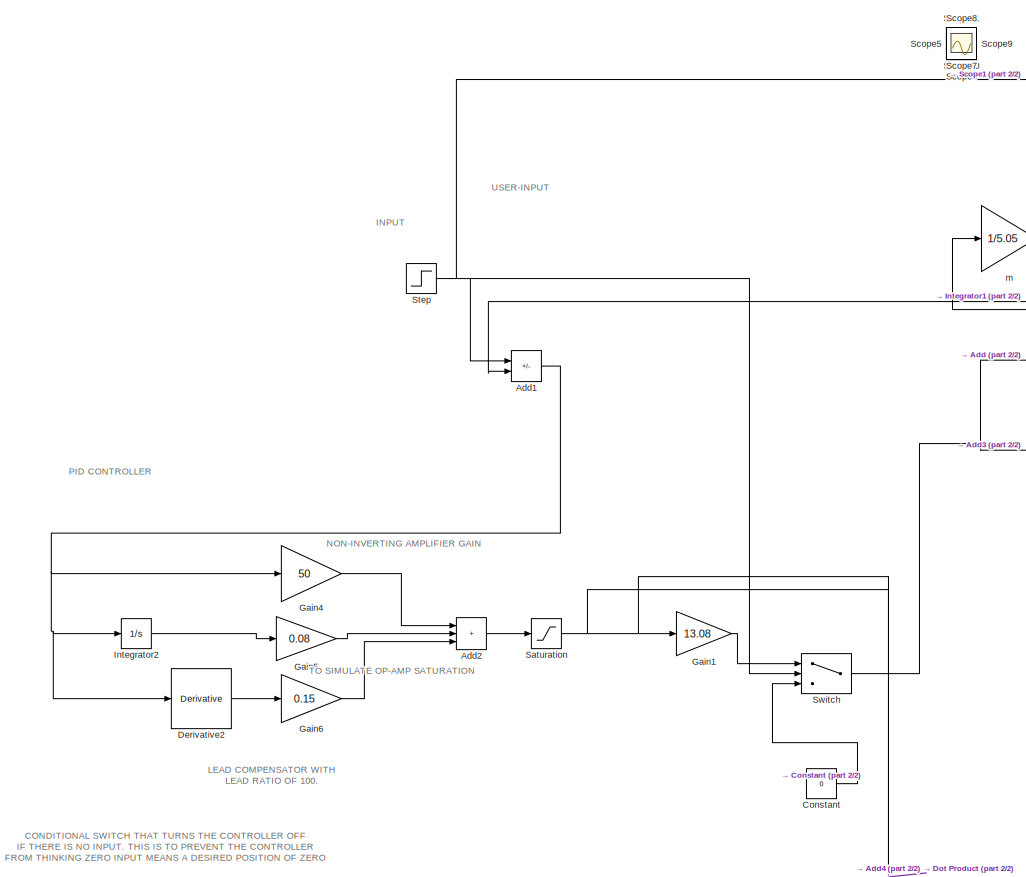
[diagram: root canvas - part 1/2, left side, full height]
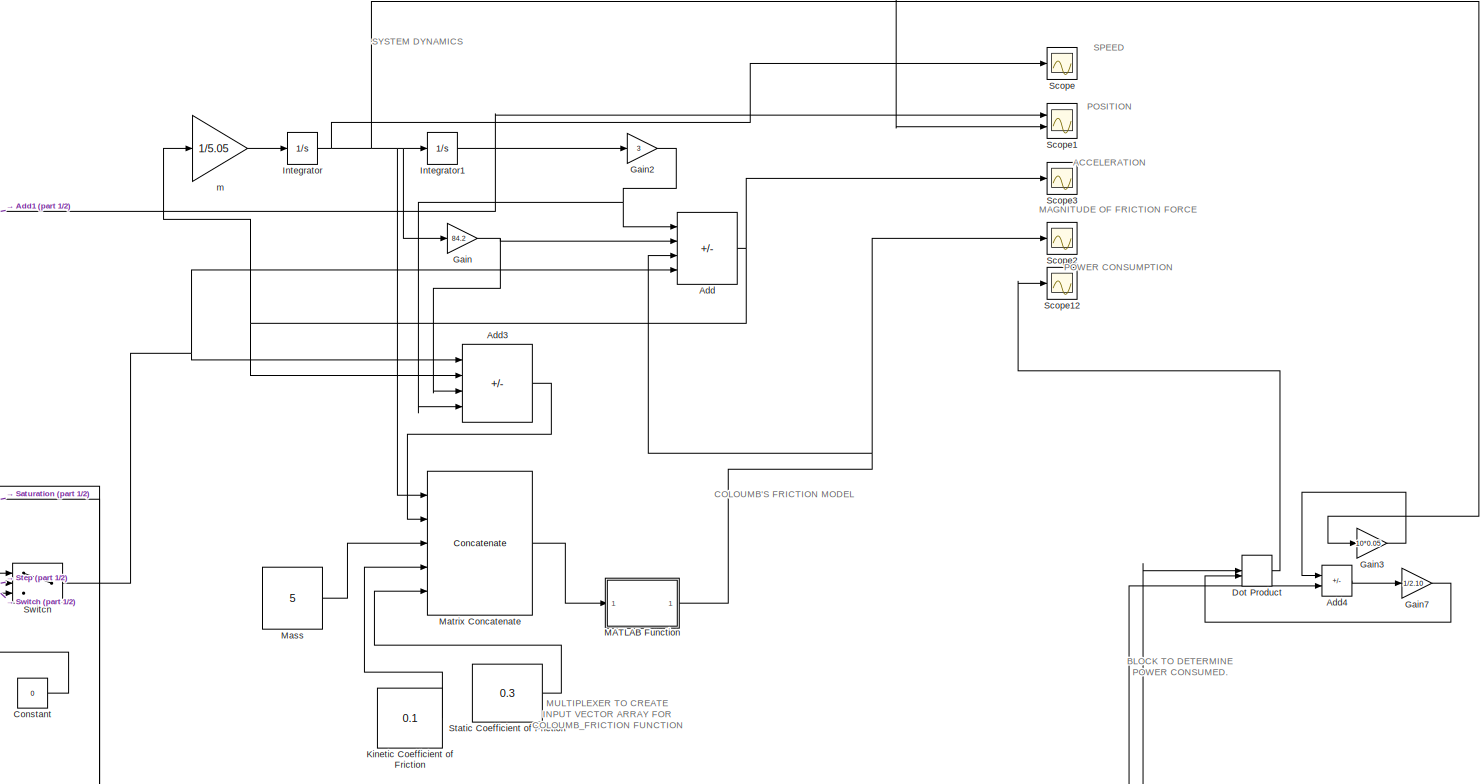
[diagram: root canvas - part 2/2, right side, full height]
MODEL slx_0d11b2eabd2a
KIND model
CONFIG AbsTol = auto
CONFIG EnableMultiTasking = off
CONFIG FixedStep = auto
CONFIG MaxStep = auto
CONFIG MinStep = auto
CONFIG RelTol = 1e-3
CONFIG SampleTimeConstraint = Unconstrained
CONFIG Solver = VariableStepAuto
CONFIG SolverName = VariableStepAuto
CONFIG StartTime = 0.0
CONFIG StopTime = 15
BLOCK [Sum] Add
  IconShape = rectangular
  Inputs = --++
  Ports = [4, 1]
BLOCK [Sum] Add1
  IconShape = rectangular
  Inputs = +-
  Ports = [2, 1]
BLOCK [Sum] Add2
  IconShape = rectangular
  Inputs = 3
  Ports = [3, 1]
BLOCK [Sum] Add3
  IconShape = rectangular
  Inputs = -+++
  Ports = [4, 1]
BLOCK [Sum] Add4
  IconShape = rectangular
  Inputs = -+
  Ports = [2, 1]
BLOCK [Constant] Constant
  Value = 0
BLOCK [Derivative] Derivative2
  CoefficientInTFapproximation = 0.01
BLOCK [DotProduct] Dot Product
  OutDataTypeStr = Inherit: Inherit via internal rule
BLOCK [Gain] Gain
  Gain = 84.2
BLOCK [Gain] Gain1
  Gain = 13.08
BLOCK [Gain] Gain2
  Gain = 3
BLOCK [Gain] Gain3
  Gain = 10*0.05
BLOCK [Gain] Gain4
  Gain = 50
BLOCK [Gain] Gain5
  Gain = 0.08
BLOCK [Gain] Gain6
  Gain = 0.15
BLOCK [Gain] Gain7
  Gain = 1/2.10
BLOCK [Integrator] Integrator
  Ports = [1, 1]
BLOCK [Integrator] Integrator1
  InitialCondition = 0.5
  Ports = [1, 1]
BLOCK [Integrator] Integrator2
  Ports = [1, 1]
BLOCK [Constant] Kinetic Coefficient of Friction
  Value = 0.1
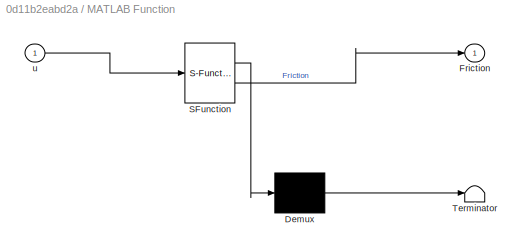
BLOCK [SubSystem] MATLAB Function
  ErrorFcn = Stateflow.Translate.translate
  PermitHierarchicalResolution = ExplicitOnly
  Ports = [1, 1]
  RequestExecContextInheritance = off
  SFBlockType = MATLAB Function
  TreatAsAtomicUnit = on
BLOCK [Demux] MATLAB Function/ Demux 
  Outputs = 1
  Ports = [1, 1]
BLOCK [S-Function] MATLAB Function/ SFunction 
  EnableBusSupport = on
  FunctionName = sf_sfun
  PortCounts = [1 2]
  Ports = [1, 2]
  SFcnIsStateOwnerBlock = off
  SFunctionDeploymentMode = off
  Tag = Stateflow S-Function 2
BLOCK [Terminator] MATLAB Function/ Terminator 
BLOCK [Outport] MATLAB Function/Friction
BLOCK [Inport] MATLAB Function/u
BLOCK [Constant] Mass
  Value = 5
BLOCK [Concatenate] Matrix Concatenate
  ConcatenateDimension = 2
  NumInputs = 5
  Ports = [5, 1]
BLOCK [Saturate] Saturation
  LowerLimit = -5
  UpperLimit = 5
BLOCK [Scope] Scope
  Floating = off
  NumInputPorts = 1
  Ports = [1]
  ScopeSpecificationString = Simulink.scopes.TimeScopeBlockCfg('CurrentConfiguration', extmgr.ConfigurationSet(extmgr.Configuration('Core','General UI',true),extmgr.Configuration('Core','Source UI',true),extmgr.Configuration('Sources','WiredSimulink',true),extmgr.Configuration('Visuals','Time Domain',true,'SerializedDisplays',{struct('MinYLimReal','-0.04','MaxYLimReal','0.1','YLabelReal','Speed','MinYLimMag','0.00000','MaxYLi...<+1795ch>
BLOCK [Scope] Scope1
  Floating = off
  NumInputPorts = 2
  Ports = [2]
  ScopeSpecificationString = Simulink.scopes.TimeScopeBlockCfg('CurrentConfiguration', extmgr.ConfigurationSet(extmgr.Configuration('Core','General UI',true),extmgr.Configuration('Core','Source UI',true),extmgr.Configuration('Sources','WiredSimulink',true,'DataLoggingVariableName','ScopeData2'),extmgr.Configuration('Visuals','Time Domain',true,'SerializedDisplays',{struct('MinYLimReal','-0.05529','MaxYLimReal','0.62648','YLab...<+2017ch>
BLOCK [Scope] Scope10
  Floating = off
  IOType = viewer
  NumInputPorts = 1
  Ports = []
  ScopeSpecificationString = Simulink.scopes.TimeScopeBlockCfg('CurrentConfiguration', extmgr.ConfigurationSet(extmgr.Configuration('Core','General UI',true),extmgr.Configuration('Core','Source UI',true),extmgr.Configuration('Sources','WiredSimulink',true,'DataLoggingVariableName','ScopeData1'),extmgr.Configuration('Visuals','Time Domain',true,'SerializedDisplays',{struct('MinYLimReal','-220.97096','MaxYLimReal','1738.73861',...<+1414ch>
BLOCK [Scope] Scope11
  Floating = off
  IOType = viewer
  NumInputPorts = 1
  Ports = []
  ScopeSpecificationString = Simulink.scopes.TimeScopeBlockCfg('CurrentConfiguration', extmgr.ConfigurationSet(extmgr.Configuration('Core','General UI',true),extmgr.Configuration('Core','Source UI',true),extmgr.Configuration('Sources','WiredSimulink',true,'DataLoggingVariableName','ScopeData2'),extmgr.Configuration('Visuals','Time Domain',true,'SerializedDisplays',{struct('MinYLimReal','-6.25','MaxYLimReal','6.25','YLabelReal...<+1779ch>
BLOCK [Scope] Scope12
  Floating = off
  NumInputPorts = 1
  Ports = [1]
  ScopeSpecificationString = Simulink.scopes.TimeScopeBlockCfg('CurrentConfiguration', extmgr.ConfigurationSet(extmgr.Configuration('Core','General UI',true),extmgr.Configuration('Core','Source UI',true),extmgr.Configuration('Sources','WiredSimulink',true,'DataLoggingVariableName','ScopeData3'),extmgr.Configuration('Visuals','Time Domain',true,'SerializedDisplays',{struct('MinYLimReal','-1.48824','MaxYLimReal','13.39419','YLa...<+1780ch>
BLOCK [Scope] Scope2
  Floating = off
  NumInputPorts = 1
  Ports = [1]
  ScopeSpecificationString = Simulink.scopes.TimeScopeBlockCfg('CurrentConfiguration', extmgr.ConfigurationSet(extmgr.Configuration('Core','General UI',true),extmgr.Configuration('Core','Source UI',true),extmgr.Configuration('Sources','WiredSimulink',true,'DataLoggingVariableName','ScopeData2'),extmgr.Configuration('Visuals','Time Domain',true,'SerializedDisplays',{struct('MinYLimReal','-8.11261','MaxYLimReal','16.70296','YLa...<+1846ch>
BLOCK [Scope] Scope3
  Floating = off
  NumInputPorts = 1
  Ports = [1]
  ScopeSpecificationString = Simulink.scopes.TimeScopeBlockCfg('CurrentConfiguration', extmgr.ConfigurationSet(extmgr.Configuration('Core','General UI',true),extmgr.Configuration('Core','Source UI',true),extmgr.Configuration('Sources','WiredSimulink',true,'DataLoggingVariableName','ScopeData3'),extmgr.Configuration('Visuals','Time Domain',true,'SerializedDisplays',{struct('MinYLimReal','-0.98365','MaxYLimReal','5.50259','YLab...<+1797ch>
BLOCK [Scope] Scope4
  Floating = off
  IOType = viewer
  NumInputPorts = 1
  Ports = []
  ScopeSpecificationString = Simulink.scopes.TimeScopeBlockCfg('CurrentConfiguration', extmgr.ConfigurationSet(extmgr.Configuration('Core','General UI',true),extmgr.Configuration('Core','Source UI',true),extmgr.Configuration('Sources','WiredSimulink',true,'DataLoggingVariableName','ScopeData1'),extmgr.Configuration('Visuals','Time Domain',true,'SerializedDisplays',{struct('MinYLimReal','-0.0375','MaxYLimReal','0.3375','YLabel...<+1353ch>
BLOCK [Scope] Scope5
  Floating = off
  IOType = viewer
  NumInputPorts = 1
  Ports = []
  ScopeSpecificationString = Simulink.scopes.TimeScopeBlockCfg('CurrentConfiguration', extmgr.ConfigurationSet(extmgr.Configuration('Core','General UI',true),extmgr.Configuration('Core','Source UI',true),extmgr.Configuration('Sources','WiredSimulink',true,'DataLoggingVariableName','ScopeData1'),extmgr.Configuration('Visuals','Time Domain',true,'SerializedDisplays',{struct('MinYLimReal','-2925.00000','MaxYLimReal','26325.00000...<+1414ch>
BLOCK [Scope] Scope6
  Floating = off
  IOType = viewer
  NumInputPorts = 1
  Ports = []
  ScopeSpecificationString = Simulink.scopes.TimeScopeBlockCfg('CurrentConfiguration', extmgr.ConfigurationSet(extmgr.Configuration('Core','General UI',true),extmgr.Configuration('Core','Source UI',true),extmgr.Configuration('Sources','WiredSimulink',true,'DataLoggingVariableName','ScopeData1'),extmgr.Configuration('Visuals','Time Domain',true,'SerializedDisplays',{struct('MinYLimReal','0.24829','MaxYLimReal','0.36906','YLabe...<+1416ch>
BLOCK [Scope] Scope7
  Floating = off
  IOType = viewer
  NumInputPorts = 1
  Ports = []
  ScopeSpecificationString = Simulink.scopes.TimeScopeBlockCfg('CurrentConfiguration', extmgr.ConfigurationSet(extmgr.Configuration('Core','General UI',true),extmgr.Configuration('Core','Source UI',true),extmgr.Configuration('Sources','WiredSimulink',true,'DataLoggingVariableName','ScopeData3'),extmgr.Configuration('Visuals','Time Domain',true,'SerializedDisplays',{struct('MinYLimReal','-6.25','MaxYLimReal','6.25','YLabelReal...<+1341ch>
BLOCK [Scope] Scope8
  Floating = off
  IOType = viewer
  NumInputPorts = 1
  Ports = []
  ScopeSpecificationString = Simulink.scopes.TimeScopeBlockCfg('CurrentConfiguration', extmgr.ConfigurationSet(extmgr.Configuration('Core','General UI',true),extmgr.Configuration('Core','Source UI',true),extmgr.Configuration('Sources','WiredSimulink',true,'DataLoggingVariableName','ScopeData4'),extmgr.Configuration('Visuals','Time Domain',true,'SerializedDisplays',{struct('MinYLimReal','-6.25','MaxYLimReal','6.25','YLabelReal...<+1741ch>
BLOCK [Scope] Scope9
  Floating = off
  IOType = viewer
  NumInputPorts = 1
  Ports = []
  ScopeSpecificationString = Simulink.scopes.TimeScopeBlockCfg('CurrentConfiguration', extmgr.ConfigurationSet(extmgr.Configuration('Core','General UI',true),extmgr.Configuration('Core','Source UI',true),extmgr.Configuration('Sources','WiredSimulink',true,'DataLoggingVariableName','ScopeData1'),extmgr.Configuration('Visuals','Time Domain',true,'SerializedDisplays',{struct('MinYLimReal','-81.75','MaxYLimReal','81.75','YLabelRe...<+1384ch>
BLOCK [Constant] Static Coefficient of Friction
  Value = 0.3
BLOCK [Step] Step
  After = 0.3
  SampleTime = 0
BLOCK [Switch] Switch
  InputSameDT = off
  SaturateOnIntegerOverflow = off
  Threshold = 0.01
BLOCK [Gain] m
  Gain = 1/5.05
ANNOTATION (root): ACCELERATION
ANNOTATION (root): BLOCK TO DETERMINE POWER CONSUMED.
ANNOTATION (root): COLOUMB'S FRICTION MODEL
ANNOTATION (root): CONDITIONAL SWITCH THAT TURNS THE CONTROLLER OFF IF THERE IS NO INPUT. THIS IS TO PREVENT THE CONTROLLER FROM THINKING ZERO INPUT MEANS A DESIRED POSITION OF ZERO
ANNOTATION (root): INPUT
ANNOTATION (root): LEAD COMPENSATOR WITH LEAD RATIO OF 100.
ANNOTATION (root): MAGNITUDE OF FRICTION FORCE
ANNOTATION (root): MULTIPLEXER TO CREATE INPUT VECTOR ARRAY FOR COLOUMB_FRICTION FUNCTION
ANNOTATION (root): NON-INVERTING AMPLIFIER GAIN
ANNOTATION (root): PID CONTROLLER
ANNOTATION (root): POSITION
ANNOTATION (root): SPEED
ANNOTATION (root): SYSTEM DYNAMICS
ANNOTATION (root): TO SIMULATE OP-AMP SATURATION
ANNOTATION (root): USER-INPUT
ANNOTATION (root): POWER CONSUMPTION
NET Add1:1 -> Derivative2:1, Gain4:1, Integrator2:1
LINE Add2:1 -> Saturation:1
LINE Add3:1 -> Matrix Concatenate:2
LINE Add4:1 -> Gain7:1
NET Add:1 -> Add3:2, Scope3:1, m:1
LINE Constant:1 -> Switch:3
LINE Derivative2:1 -> Gain6:1
LINE Dot Product:1 -> Scope12:1
LINE Gain1:1 -> Switch:1
NET Gain2:1 -> Add3:4, Add:1
LINE Gain3:1 -> Add4:1
LINE Gain4:1 -> Add2:1
LINE Gain5:1 -> Add2:2
LINE Gain6:1 -> Add2:3
LINE Gain7:1 -> Dot Product:2
NET Gain:1 -> Add3:3, Add:2
NET Integrator1:1 -> Add1:2, Gain2:1, Scope1:1
LINE Integrator2:1 -> Gain5:1
NET Integrator:1 -> Gain3:1, Gain:1, Integrator1:1, Matrix Concatenate:1, Scope:1
LINE Kinetic Coefficient of Friction:1 -> Matrix Concatenate:4
NET MATLAB Function:1 -> Add:3, Scope2:1
LINE Mass:1 -> Matrix Concatenate:3
LINE Matrix Concatenate:1 -> MATLAB Function:1
NET Saturation:1 -> Add4:2, Dot Product:1, Gain1:1
LINE Static Coefficient of Friction:1 -> Matrix Concatenate:5
NET Step:1 -> Add1:1, Scope1:2, Switch:2
NET Switch:1 -> Add3:1, Add:4
LINE m:1 -> Integrator:1
note: NET lines group one-source signal fan-out (src -> all destinations, sorted); 1:1 wires keep LINE
CHART MATLAB Function states=1 transitions=1
  STATE_LABEL 'eML_blk_kernel()'
  STATE_LABEL 'SCRIPT:\nfunction Friction = Colomb_Friction(u)\n%The input u is a 6-tuple\n%u(1) is the velocity\n%u(2) is the net force\n%u(3) is the mass\n%u(4) is the kinetic coefficient of friction\n%u(5) is the static coefficient of friction\nspeed = u(1);\nTOL = 1E-3;\nif (length(u) > 1)\n    Static_Friction = u(5)*u(3)*9.8;\n    Kinetic_Friction = u(4)*u(3)*9.8;\n    Net_Force = u(2);\n    if (abs(speed) < TOL)\n       ...<+240ch>'
CHART  states=0 transitions=0
